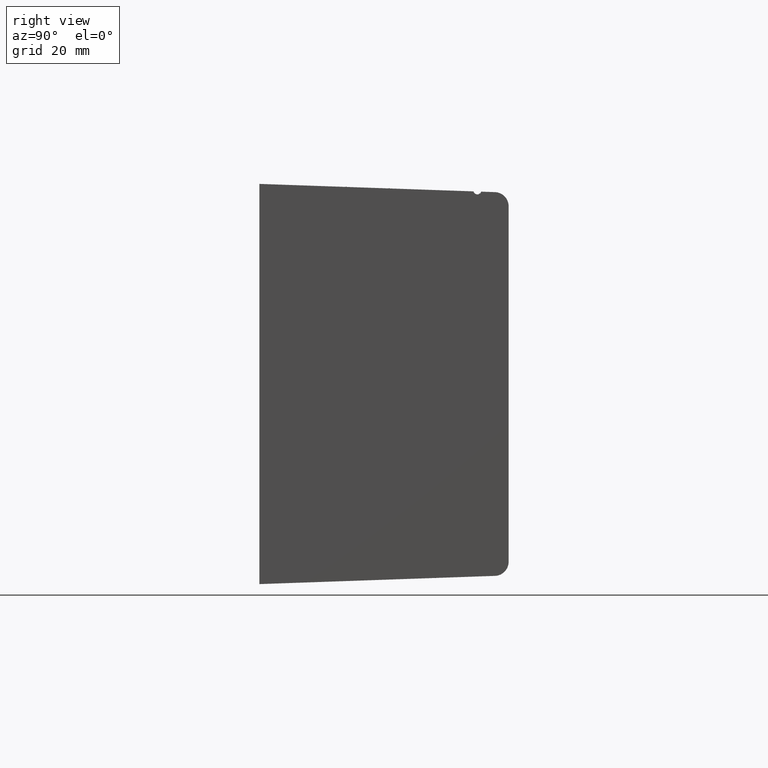
[diagram: clean part render]
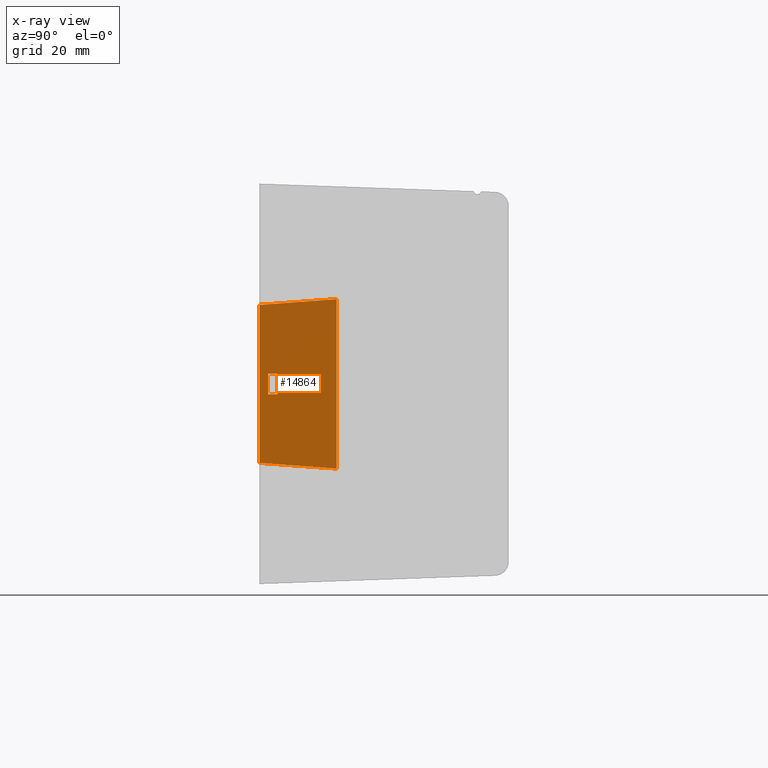
[diagram: x-ray — body ghosted, one internal face saturated and labeled with its STEP entity id]
A machine part, right view, then the same camera in x-ray: the body is ghosted and one INTERNAL B-rep face — a face not visible from any outside direction — is saturated and labeled: STEP entity #14864.
In plain terms, the highlighted planar face has unit normal (-1, 0, 0).
Its self-contained STEP definition (entity closure, byte-faithful):
#2 = VECTOR ( 'NONE', #32188, 39.37007874015748100 ) ;
#574 = ORIENTED_EDGE ( 'NONE', *, *, #30834, .T. ) ;
#1466 = CARTESIAN_POINT ( 'NONE',  ( -1.364999999999999800, -1.850000000000000300, 2.750000000000000000 ) ) ;
#3053 = FACE_OUTER_BOUND ( 'NONE', #20453, .T. ) ;
#4595 = DIRECTION ( 'NONE',  ( 0.0000000000000000000, -1.000000000000000000, 0.0000000000000000000 ) ) ;
#5680 = ORIENTED_EDGE ( 'NONE', *, *, #36307, .T. ) ;
#6250 = EDGE_CURVE ( 'NONE', #35037, #41891, #26583, .T. ) ;
#6257 = CARTESIAN_POINT ( 'NONE',  ( -1.364999999999999800, -1.595717967697244200, 0.1499999999999999900 ) ) ;
#7835 = CARTESIAN_POINT ( 'NONE',  ( -1.364999999999999800, -1.350000000000000100, 2.732539615254128100 ) ) ;
#7955 = EDGE_CURVE ( 'NONE', #35037, #11595, #25543, .T. ) ;
#7958 = CARTESIAN_POINT ( 'NONE',  ( -1.364999999999999800, -1.595717967697244200, -0.1499999999999999900 ) ) ;
#8644 = DIRECTION ( 'NONE',  ( 0.0000000000000000000, -0.9972646886342373400, -0.07391306246704762400 ) ) ;
#8655 = VECTOR ( 'NONE', #22114, 39.37007874015748100 ) ;
#9165 = VERTEX_POINT ( 'NONE', #39478 ) ;
#10324 = ORIENTED_EDGE ( 'NONE', *, *, #19371, .T. ) ;
#11595 = VERTEX_POINT ( 'NONE', #15554 ) ;
#11811 = DIRECTION ( 'NONE',  ( 0.0000000000000000000, 0.0000000000000000000, 1.000000000000000000 ) ) ;
#11864 = ORIENTED_EDGE ( 'NONE', *, *, #6250, .F. ) ;
#13341 = VECTOR ( 'NONE', #4595, 39.37007874015748100 ) ;
#14705 = DIRECTION ( 'NONE',  ( -0.0000000000000000000, -0.0000000000000000000, 1.000000000000000000 ) ) ;
#14864 = ADVANCED_FACE ( 'NONE', ( #43905, #3053 ), #39271, .F. ) ;
#15554 = CARTESIAN_POINT ( 'NONE',  ( -1.364999999999999800, -0.7500000000000001100, 1.206527371459526200 ) ) ;
#16319 = CARTESIAN_POINT ( 'NONE',  ( -1.364999999999999800, -1.595717967697244200, 0.1499999999999999900 ) ) ;
#17356 = VECTOR ( 'NONE', #33119, 39.37007874015748100 ) ;
#18588 = ORIENTED_EDGE ( 'NONE', *, *, #35393, .F. ) ;
#19371 = EDGE_CURVE ( 'NONE', #43672, #39984, #43323, .T. ) ;
#20414 = LINE ( 'NONE', #6257, #8655 ) ;
#20453 = EDGE_LOOP ( 'NONE', ( #35659, #574, #23804, #11864 ) ) ;
#21107 = EDGE_CURVE ( 'NONE', #23297, #30778, #45896, .T. ) ;
#22114 = DIRECTION ( 'NONE',  ( 0.0000000000000000000, -1.000000000000000000, 0.0000000000000000000 ) ) ;
#23297 = VERTEX_POINT ( 'NONE', #24600 ) ;
#23795 = LINE ( 'NONE', #40016, #13341 ) ;
#23804 = ORIENTED_EDGE ( 'NONE', *, *, #47792, .T. ) ;
#24173 = CARTESIAN_POINT ( 'NONE',  ( -1.364999999999999800, -1.725000000000000300, -0.1499999999999997700 ) ) ;
#24600 = CARTESIAN_POINT ( 'NONE',  ( -1.364999999999999800, -1.725000000000000100, 0.1499999999999997700 ) ) ;
#25543 = LINE ( 'NONE', #26269, #45352 ) ;
#26269 = CARTESIAN_POINT ( 'NONE',  ( -1.364999999999999800, -0.7500000000000001100, 0.8750000000000000000 ) ) ;
#26583 = LINE ( 'NONE', #50940, #46407 ) ;
#27250 = DIRECTION ( 'NONE',  ( 0.0000000000000000000, -0.9972646886342373400, 0.07391306246704762400 ) ) ;
#27413 = AXIS2_PLACEMENT_3D ( 'NONE', #7835, #35452, #11811 ) ;
#28432 = ORIENTED_EDGE ( 'NONE', *, *, #21107, .F. ) ;
#29436 = CARTESIAN_POINT ( 'NONE',  ( -1.364999999999999800, -0.7500000000000001100, -1.206527371459526600 ) ) ;
#29451 = CARTESIAN_POINT ( 'NONE',  ( -1.364999999999999800, -1.595717967697244200, 0.1499999999999997700 ) ) ;
#29794 = LINE ( 'NONE', #44249, #49581 ) ;
#30778 = VERTEX_POINT ( 'NONE', #24173 ) ;
#30834 = EDGE_CURVE ( 'NONE', #11595, #9165, #29794, .T. ) ;
#32188 = DIRECTION ( 'NONE',  ( -0.0000000000000000000, -0.0000000000000000000, -1.000000000000000000 ) ) ;
#33119 = DIRECTION ( 'NONE',  ( 0.0000000000000000000, 0.0000000000000000000, -1.000000000000000000 ) ) ;
#35037 = VERTEX_POINT ( 'NONE', #29436 ) ;
#35122 = CARTESIAN_POINT ( 'NONE',  ( -1.364999999999999800, -1.725000000000000300, 0.1499999999999999900 ) ) ;
#35393 = EDGE_CURVE ( 'NONE', #43672, #23297, #20414, .T. ) ;
#35452 = DIRECTION ( 'NONE',  ( -1.000000000000000000, 0.0000000000000000000, 0.0000000000000000000 ) ) ;
#35496 = CARTESIAN_POINT ( 'NONE',  ( -1.364999999999999800, -1.850000000000000300, -1.124999999999999800 ) ) ;
#35659 = ORIENTED_EDGE ( 'NONE', *, *, #7955, .T. ) ;
#35934 = EDGE_LOOP ( 'NONE', ( #28432, #18588, #10324, #5680 ) ) ;
#36307 = EDGE_CURVE ( 'NONE', #39984, #30778, #23795, .T. ) ;
#38376 = LINE ( 'NONE', #1466, #17356 ) ;
#39271 = PLANE ( 'NONE',  #27413 ) ;
#39478 = CARTESIAN_POINT ( 'NONE',  ( -1.364999999999999800, -1.850000000000000300, 1.124999999999999800 ) ) ;
#39984 = VERTEX_POINT ( 'NONE', #7958 ) ;
#40016 = CARTESIAN_POINT ( 'NONE',  ( -1.364999999999999800, -1.595717967697244200, -0.1499999999999999900 ) ) ;
#41891 = VERTEX_POINT ( 'NONE', #35496 ) ;
#43076 = DIRECTION ( 'NONE',  ( -0.0000000000000000000, -0.0000000000000000000, -1.000000000000000000 ) ) ;
#43323 = LINE ( 'NONE', #16319, #2 ) ;
#43672 = VERTEX_POINT ( 'NONE', #29451 ) ;
#43905 = FACE_BOUND ( 'NONE', #35934, .T. ) ;
#44249 = CARTESIAN_POINT ( 'NONE',  ( -1.364999999999999800, -1.234238399108370500, 1.170637658878549200 ) ) ;
#45352 = VECTOR ( 'NONE', #14705, 39.37007874015748100 ) ;
#45896 = LINE ( 'NONE', #35122, #48337 ) ;
#46407 = VECTOR ( 'NONE', #27250, 39.37007874015748900 ) ;
#47792 = EDGE_CURVE ( 'NONE', #9165, #41891, #38376, .T. ) ;
#48337 = VECTOR ( 'NONE', #43076, 39.37007874015748100 ) ;
#49581 = VECTOR ( 'NONE', #8644, 39.37007874015748900 ) ;
#50940 = CARTESIAN_POINT ( 'NONE',  ( -1.364999999999999800, -1.850000000000000300, -1.124999999999999800 ) ) ;